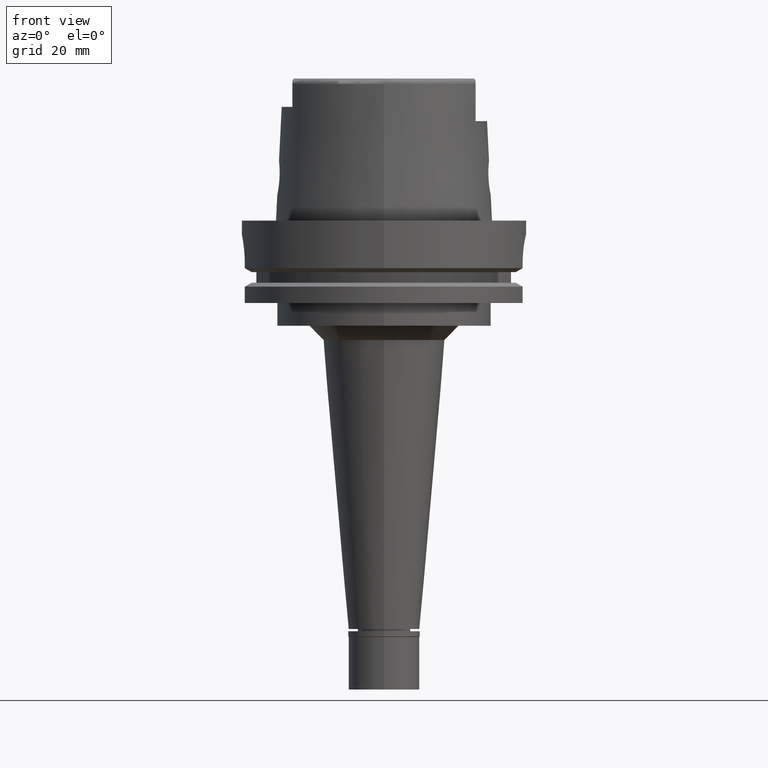
[diagram: clean part render]
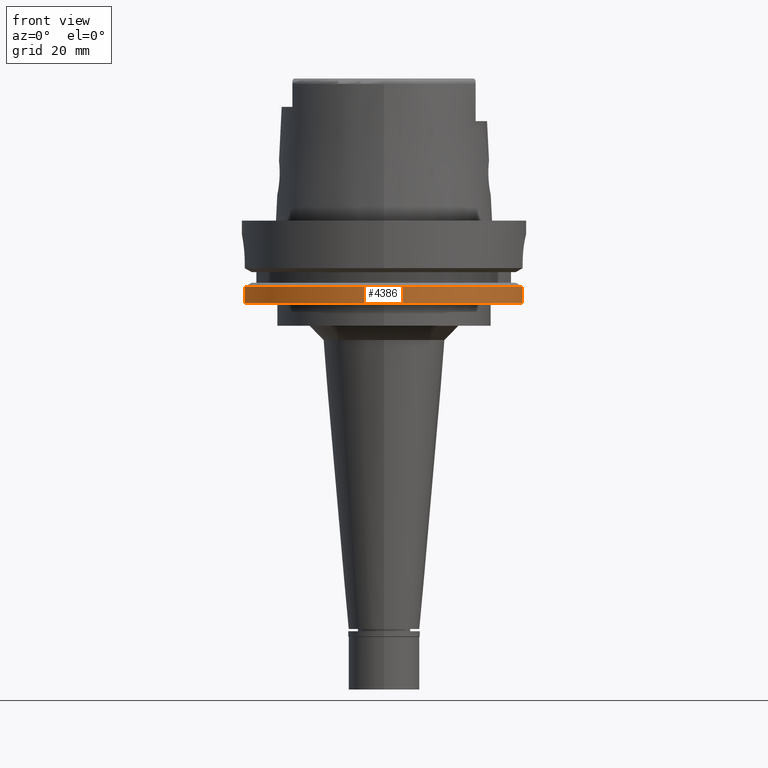
[diagram: same view with one face highlighted and labeled with its STEP entity id]
A machine part, front view. The second image highlights one B-rep face of the part: STEP entity #4386.
In plain terms, the highlighted cylindrical surface (partial cylindrical patch) has radius 50 mm, axis along (0, 0, 1).
Its self-contained STEP definition (entity closure, byte-faithful):
#6 = CARTESIAN_POINT ( 'NONE',  ( 0.0000000000000000000, 0.0000000000000000000, -29.00000000000000000 ) ) ;
#270 = ORIENTED_EDGE ( 'NONE', *, *, #5307, .F. ) ;
#405 = DIRECTION ( 'NONE',  ( 0.0000000000000000000, 0.0000000000000000000, -1.000000000000000000 ) ) ;
#487 = DIRECTION ( 'NONE',  ( 0.0000000000000000000, 0.0000000000000000000, 1.000000000000000000 ) ) ;
#532 = DIRECTION ( 'NONE',  ( 0.0000000000000000000, 0.0000000000000000000, 1.000000000000000000 ) ) ;
#627 = VERTEX_POINT ( 'NONE', #4829 ) ;
#825 = CARTESIAN_POINT ( 'NONE',  ( 48.77499359303000404, -11.00000000000000000, -23.24759526419000011 ) ) ;
#841 = CARTESIAN_POINT ( 'NONE',  ( 48.77499359303000404, -11.00000000000000000, -23.24759526419000011 ) ) ;
#911 = AXIS2_PLACEMENT_3D ( 'NONE', #2516, #405, #1256 ) ;
#936 = ORIENTED_EDGE ( 'NONE', *, *, #4705, .F. ) ;
#1032 = EDGE_CURVE ( 'NONE', #627, #4619, #1559, .T. ) ;
#1125 = DIRECTION ( 'NONE',  ( 0.0000000000000000000, 1.000000000000000000, 0.0000000000000000000 ) ) ;
#1256 = DIRECTION ( 'NONE',  ( 0.9754998718605770724, -0.2199999999999950051, 0.0000000000000000000 ) ) ;
#1272 = CIRCLE ( 'NONE', #911, 50.00000000000000711 ) ;
#1559 = CIRCLE ( 'NONE', #3177, 50.00000000000000000 ) ;
#2232 = CARTESIAN_POINT ( 'NONE',  ( 0.0000000000000000000, 0.0000000000000000000, -169.2400000000000091 ) ) ;
#2513 = EDGE_LOOP ( 'NONE', ( #936, #3895, #270, #4432 ) ) ;
#2516 = CARTESIAN_POINT ( 'NONE',  ( 0.0000000000000000000, 0.0000000000000000000, -23.24759526419000011 ) ) ;
#2628 = DIRECTION ( 'NONE',  ( 0.0000000000000000000, -1.000000000000000000, 0.0000000000000000000 ) ) ;
#2892 = CARTESIAN_POINT ( 'NONE',  ( -48.98979485565999425, -10.00000000000000000, -29.00000000000000000 ) ) ;
#2948 = LINE ( 'NONE', #2892, #4241 ) ;
#3177 = AXIS2_PLACEMENT_3D ( 'NONE', #6, #487, #2628 ) ;
#3180 = VECTOR ( 'NONE', #5452, 1000.000000000000000 ) ;
#3581 = EDGE_CURVE ( 'NONE', #5582, #4600, #1272, .T. ) ;
#3895 = ORIENTED_EDGE ( 'NONE', *, *, #1032, .T. ) ;
#4217 = CARTESIAN_POINT ( 'NONE',  ( -48.98979485565999425, -10.00000000000000000, -23.24759526419000011 ) ) ;
#4241 = VECTOR ( 'NONE', #5559, 1000.000000000000000 ) ;
#4370 = CYLINDRICAL_SURFACE ( 'NONE', #4685, 50.00000000000000000 ) ;
#4386 = ADVANCED_FACE ( 'NONE', ( #4811 ), #4370, .T. ) ;
#4432 = ORIENTED_EDGE ( 'NONE', *, *, #3581, .T. ) ;
#4600 = VERTEX_POINT ( 'NONE', #4217 ) ;
#4619 = VERTEX_POINT ( 'NONE', #4693 ) ;
#4685 = AXIS2_PLACEMENT_3D ( 'NONE', #2232, #532, #1125 ) ;
#4693 = CARTESIAN_POINT ( 'NONE',  ( 48.77499359303000404, -11.00000000000000000, -29.00000000000000000 ) ) ;
#4705 = EDGE_CURVE ( 'NONE', #627, #4600, #2948, .T. ) ;
#4811 = FACE_OUTER_BOUND ( 'NONE', #2513, .T. ) ;
#4829 = CARTESIAN_POINT ( 'NONE',  ( -48.98979485565999425, -10.00000000000000000, -29.00000000000000000 ) ) ;
#5307 = EDGE_CURVE ( 'NONE', #5582, #4619, #5542, .T. ) ;
#5452 = DIRECTION ( 'NONE',  ( 8.028864439405999945E-14, -2.223377844757999882E-14, -1.000000000000000000 ) ) ;
#5542 = LINE ( 'NONE', #825, #3180 ) ;
#5559 = DIRECTION ( 'NONE',  ( 9.140553361784999886E-14, 0.0000000000000000000, 1.000000000000000000 ) ) ;
#5582 = VERTEX_POINT ( 'NONE', #841 ) ;